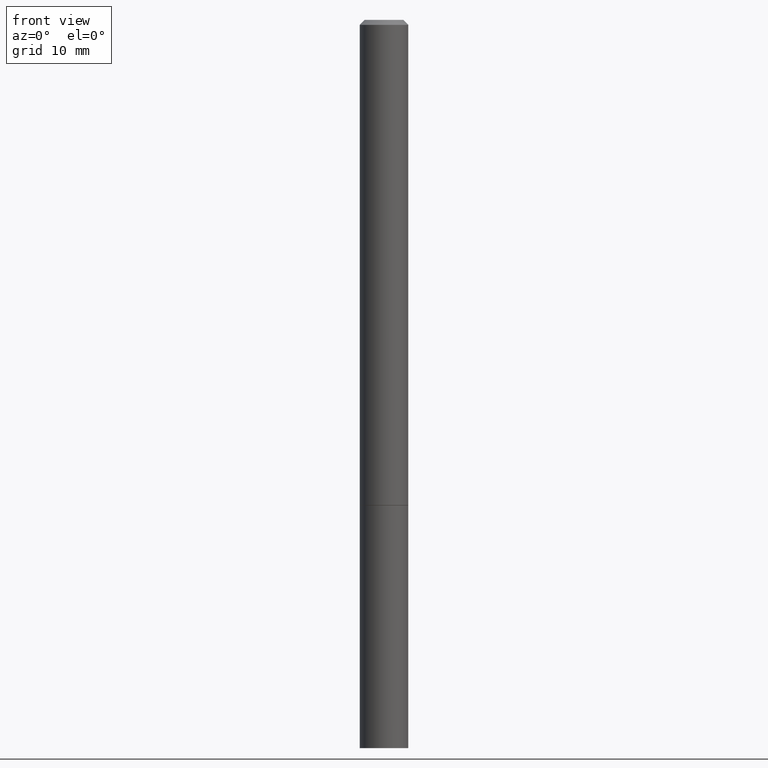
[diagram: clean part render]
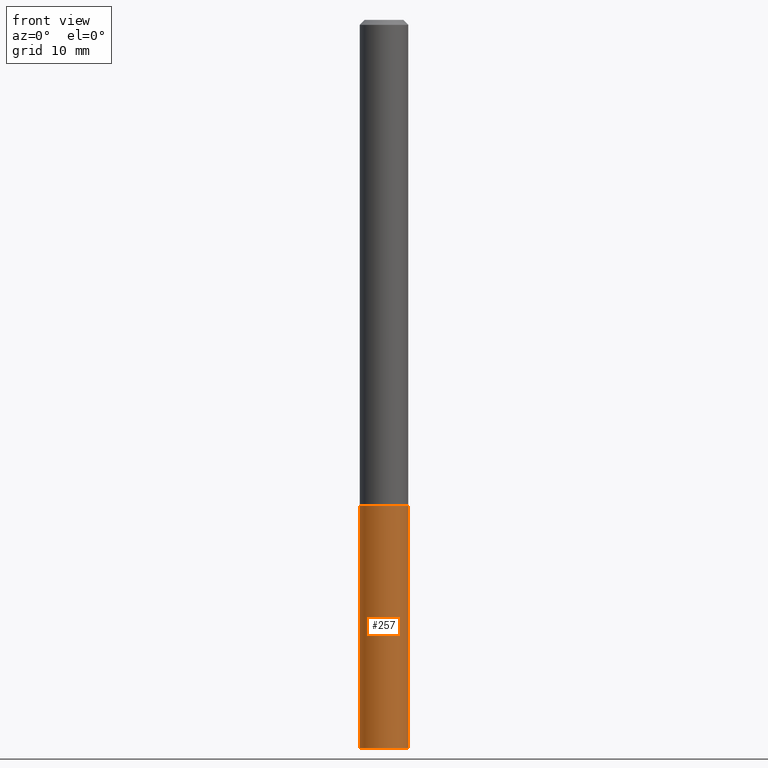
[diagram: same view with one face highlighted and labeled with its STEP entity id]
A machine part, front view. The second image highlights one B-rep face of the part: STEP entity #257.
In plain terms, the highlighted cylindrical surface (edge-blend (fillet) strip) has radius 2.5006 mm, axis along (-0, 0, 1).
Its self-contained STEP definition (entity closure, byte-faithful):
#9 = EDGE_CURVE ( 'NONE', #71, #230, #266, .T. ) ;
#16 = CARTESIAN_POINT ( 'NONE',  ( -0.09844999999999999585, -7.891784233068567007E-15, -1.968499999999999694 ) ) ;
#29 = CARTESIAN_POINT ( 'NONE',  ( -0.09844999999999999585, -7.891784233068567007E-15, -2.952799999999999869 ) ) ;
#30 = ORIENTED_EDGE ( 'NONE', *, *, #231, .F. ) ;
#32 = ORIENTED_EDGE ( 'NONE', *, *, #9, .F. ) ;
#71 = VERTEX_POINT ( 'NONE', #29 ) ;
#95 = DIRECTION ( 'NONE',  ( 1.000000000000000000, -6.982962677686265922E-15, 0.000000000000000000 ) ) ;
#99 = DIRECTION ( 'NONE',  ( -2.445468806185136877E-29, 3.491481338843145188E-15, 1.000000000000000000 ) ) ;
#101 = CARTESIAN_POINT ( 'NONE',  ( 0.09844999999999999585, -6.874726756182129545E-16, 4.800596035771099214E-30 ) ) ;
#116 = CARTESIAN_POINT ( 'NONE',  ( 4.813905344975440714E-29, -6.872981015512730918E-15, -1.968499999999999694 ) ) ;
#119 = CARTESIAN_POINT ( 'NONE',  ( 7.220980290903470182E-29, -1.030964609733603853E-14, -2.952799999999999869 ) ) ;
#122 = VERTEX_POINT ( 'NONE', #214 ) ;
#123 = CARTESIAN_POINT ( 'NONE',  ( -0.09844999999999999585, 6.995293233558186035E-16, -4.842691596355954042E-30 ) ) ;
#128 = CYLINDRICAL_SURFACE ( 'NONE', #156, 0.09844999999999999585 ) ;
#129 = ORIENTED_EDGE ( 'NONE', *, *, #339, .T. ) ;
#133 = CIRCLE ( 'NONE', #314, 0.09844999999999999585 ) ;
#154 = FACE_OUTER_BOUND ( 'NONE', #222, .T. ) ;
#156 = AXIS2_PLACEMENT_3D ( 'NONE', #159, #184, #305 ) ;
#159 = CARTESIAN_POINT ( 'NONE',  ( 0.000000000000000000, 0.000000000000000000, 0.000000000000000000 ) ) ;
#163 = AXIS2_PLACEMENT_3D ( 'NONE', #116, #352, #95 ) ;
#182 = LINE ( 'NONE', #101, #264 ) ;
#184 = DIRECTION ( 'NONE',  ( -2.445468806185136597E-29, 3.491481338843145583E-15, 1.000000000000000000 ) ) ;
#202 = DIRECTION ( 'NONE',  ( 1.000000000000000000, -6.982962677686274599E-15, 0.000000000000000000 ) ) ;
#209 = DIRECTION ( 'NONE',  ( -2.445468806185136597E-29, 3.491481338843145583E-15, 1.000000000000000000 ) ) ;
#214 = CARTESIAN_POINT ( 'NONE',  ( 0.09844999999999999585, -1.099711877295425267E-14, -2.952799999999999869 ) ) ;
#222 = EDGE_LOOP ( 'NONE', ( #32, #129, #240, #30 ) ) ;
#230 = VERTEX_POINT ( 'NONE', #16 ) ;
#231 = EDGE_CURVE ( 'NONE', #230, #289, #337, .T. ) ;
#240 = ORIENTED_EDGE ( 'NONE', *, *, #243, .T. ) ;
#243 = EDGE_CURVE ( 'NONE', #122, #289, #182, .T. ) ;
#244 = CARTESIAN_POINT ( 'NONE',  ( 0.09844999999999999585, -7.560453691130944267E-15, -1.968499999999999694 ) ) ;
#257 = ADVANCED_FACE ( 'NONE', ( #154 ), #128, .T. ) ;
#263 = VECTOR ( 'NONE', #99, 39.37007874015748143 ) ;
#264 = VECTOR ( 'NONE', #298, 39.37007874015748143 ) ;
#266 = LINE ( 'NONE', #123, #263 ) ;
#289 = VERTEX_POINT ( 'NONE', #244 ) ;
#298 = DIRECTION ( 'NONE',  ( -2.445468806185136877E-29, 3.491481338843145188E-15, 1.000000000000000000 ) ) ;
#305 = DIRECTION ( 'NONE',  ( 1.000000000000000000, -6.982962677686266711E-15, 4.876176775795936353E-29 ) ) ;
#314 = AXIS2_PLACEMENT_3D ( 'NONE', #119, #209, #202 ) ;
#337 = CIRCLE ( 'NONE', #163, 0.09844999999999999585 ) ;
#339 = EDGE_CURVE ( 'NONE', #71, #122, #133, .T. ) ;
#352 = DIRECTION ( 'NONE',  ( -2.445468806185136597E-29, 3.491481338843145583E-15, 1.000000000000000000 ) ) ;